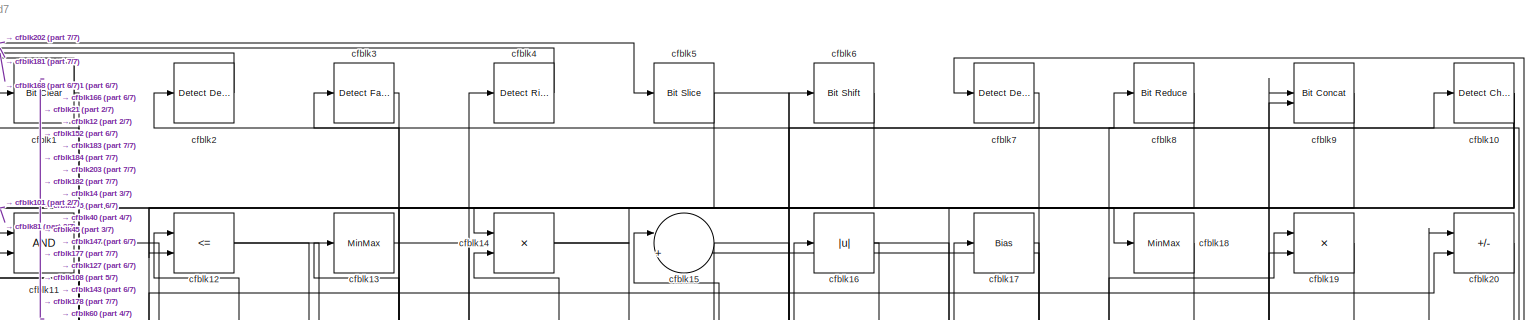
[diagram: root canvas - part 1/7, full width, top band]
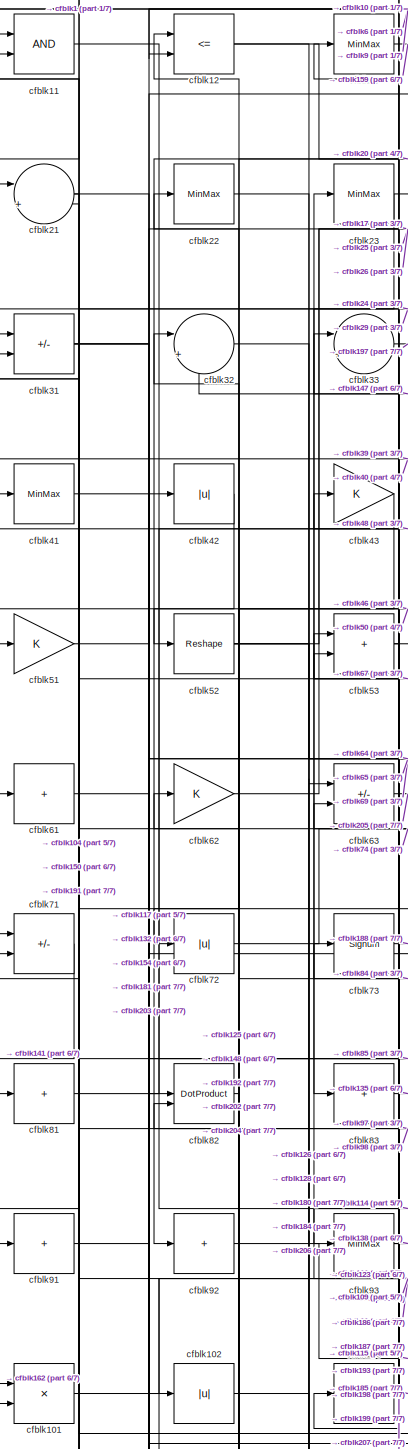
[diagram: root canvas - part 2/7, top left region]
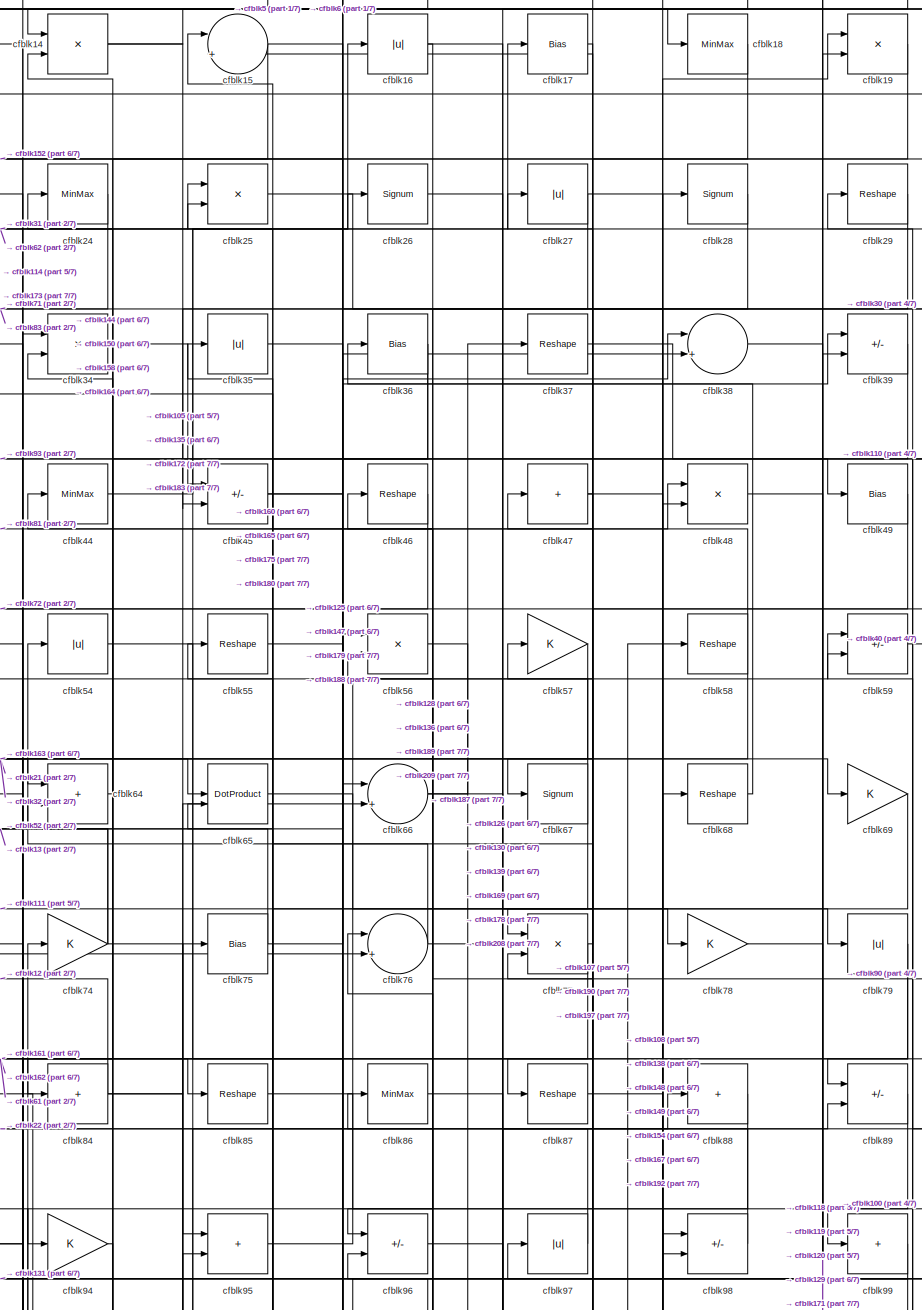
[diagram: root canvas - part 3/7, top center region]
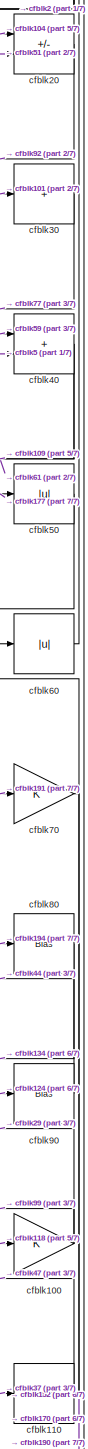
[diagram: root canvas - part 4/7, top right region]
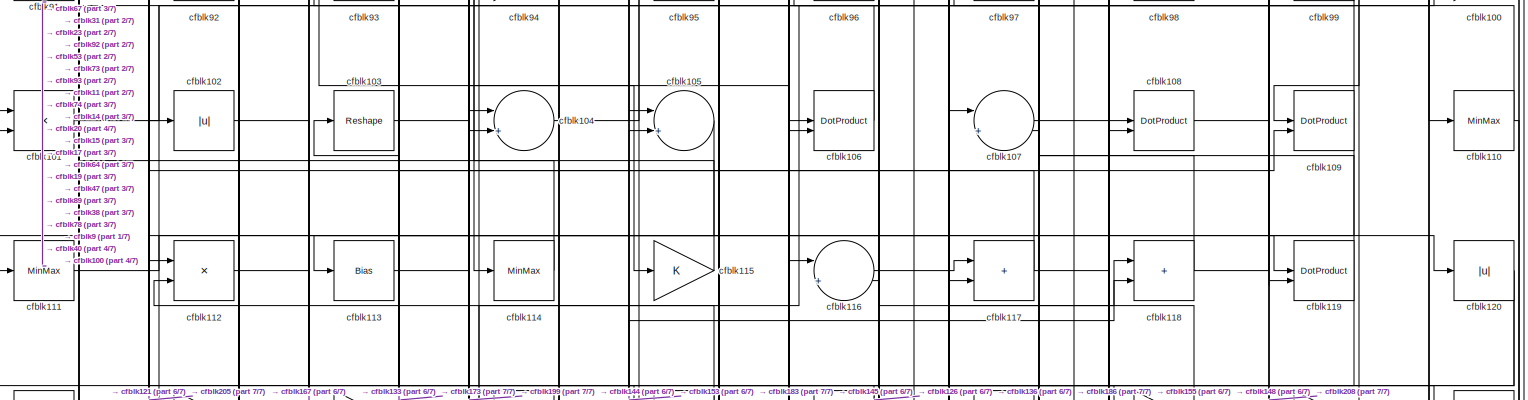
[diagram: root canvas - part 5/7, full width, middle band]
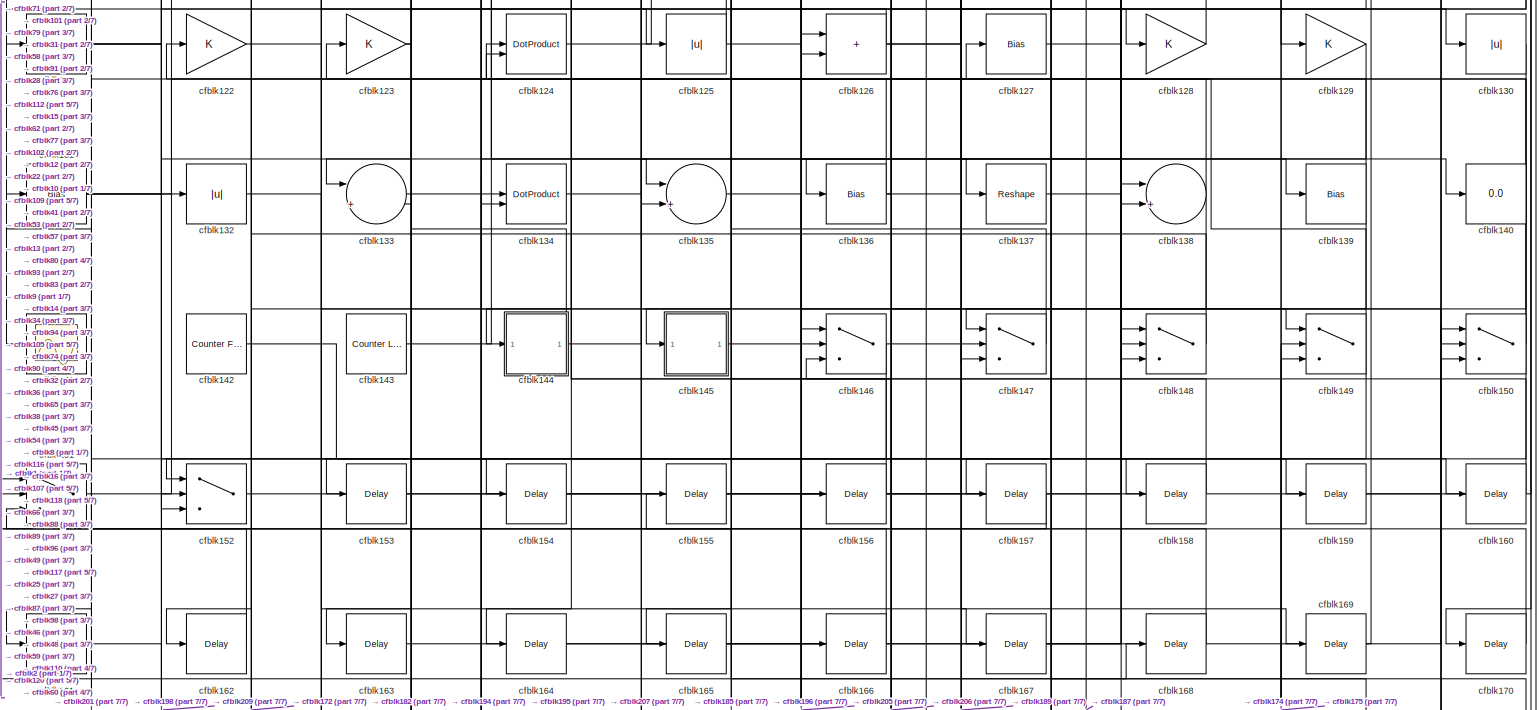
[diagram: root canvas - part 6/7, full width, bottom band]
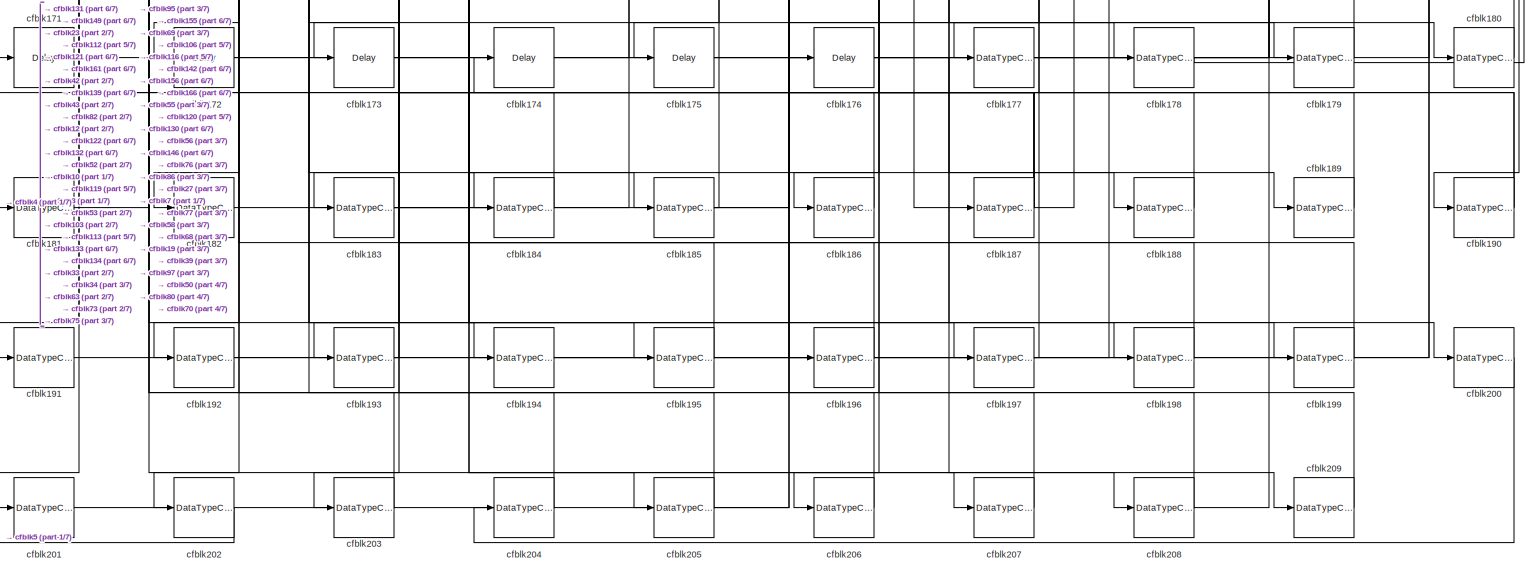
[diagram: root canvas - part 7/7, full width, bottom band]
MODEL slx_ef9e460aded7
KIND model
CONFIG AbsTol = auto
CONFIG EnableMultiTasking = off
CONFIG FixedStep = auto
CONFIG MaxStep = auto
CONFIG MinStep = auto
CONFIG RelTol = 1e-3
CONFIG SampleTimeConstraint = Unconstrained
CONFIG SolverName = VariableStepAuto
CONFIG StartTime = 0.0
CONFIG StopTime = 10.0
BLOCK [Reference] cfblk1  REF=simulink/Logic and Bit
Operations/Bit Clear
  LibrarySourceBlock = hdlsllib/Logic and Bit\nOperations/Bit Clear
  SourceBlock = simulink/Logic and Bit\nOperations/Bit Clear
  SourceType = Bit Clear
BLOCK [Reference] cfblk10  REF=simulink/Logic and Bit
Operations/Detect
Change
  LibrarySourceBlock = hdlsllib/Logic and Bit\nOperations/Detect\nChange
  SourceBlock = simulink/Logic and Bit\nOperations/Detect\nChange
  SourceType = Detect Change
BLOCK [Gain] cfblk100
BLOCK [Product] cfblk101
  Inputs = */
  RndMeth = Zero
  SaturateOnIntegerOverflow = on
BLOCK [Abs] cfblk102
  SaturateOnIntegerOverflow = off
BLOCK [Reshape] cfblk103
BLOCK [Sum] cfblk104
  Inputs = |++
BLOCK [Sum] cfblk105
  Inputs = |++
BLOCK [DotProduct] cfblk106
  OutDataTypeStr = Inherit: Inherit via internal rule
BLOCK [Sum] cfblk107
  Inputs = |++
BLOCK [DotProduct] cfblk108
  OutDataTypeStr = Inherit: Inherit via internal rule
BLOCK [DotProduct] cfblk109
  OutDataTypeStr = Inherit: Inherit via internal rule
BLOCK [Logic] cfblk11
  AllPortsSameDT = off
  OutDataTypeStr = boolean
BLOCK [MinMax] cfblk110
BLOCK [MinMax] cfblk111
BLOCK [Product] cfblk112
  Inputs = */
  RndMeth = Zero
  SaturateOnIntegerOverflow = on
BLOCK [Bias] cfblk113
  Bias = 0.0
  SaturateOnIntegerOverflow = off
BLOCK [MinMax] cfblk114
BLOCK [Gain] cfblk115
BLOCK [Sum] cfblk116
  Inputs = |++
BLOCK [Sum] cfblk117
  IconShape = rectangular
BLOCK [Sum] cfblk118
  IconShape = rectangular
BLOCK [DotProduct] cfblk119
  OutDataTypeStr = Inherit: Inherit via internal rule
BLOCK [RelationalOperator] cfblk12
  InputSameDT = off
  Operator = <=
  OutDataTypeStr = boolean
BLOCK [Abs] cfblk120
  SaturateOnIntegerOverflow = off
BLOCK [Sum] cfblk121
  IconShape = rectangular
  Inputs = +
BLOCK [Gain] cfblk122
BLOCK [Gain] cfblk123
BLOCK [DotProduct] cfblk124
  OutDataTypeStr = Inherit: Inherit via internal rule
BLOCK [Abs] cfblk125
  SaturateOnIntegerOverflow = off
BLOCK [Sum] cfblk126
  IconShape = rectangular
BLOCK [Bias] cfblk127
  Bias = 0.0
  SaturateOnIntegerOverflow = off
BLOCK [Gain] cfblk128
BLOCK [Gain] cfblk129
BLOCK [MinMax] cfblk13
BLOCK [Abs] cfblk130
  SaturateOnIntegerOverflow = off
BLOCK [Bias] cfblk131
  Bias = 0.0
  SaturateOnIntegerOverflow = off
BLOCK [Abs] cfblk132
  SaturateOnIntegerOverflow = off
BLOCK [Sum] cfblk133
  Inputs = |++
BLOCK [DotProduct] cfblk134
  OutDataTypeStr = Inherit: Inherit via internal rule
BLOCK [Sum] cfblk135
  Inputs = |++
BLOCK [Bias] cfblk136
  Bias = 0.0
  SaturateOnIntegerOverflow = off
BLOCK [Reshape] cfblk137
BLOCK [Sum] cfblk138
  Inputs = |++
BLOCK [Bias] cfblk139
  Bias = 0.0
  SaturateOnIntegerOverflow = off
BLOCK [Product] cfblk14
  Inputs = */
  RndMeth = Zero
  SaturateOnIntegerOverflow = on
BLOCK [Display] cfblk140
  Decimation = 1
BLOCK [Scope] cfblk141
  Floating = off
  NumInputPorts = 1
  ScopeSpecificationString = Simulink.scopes.TimeScopeBlockCfg('CurrentConfiguration', extmgr.ConfigurationSet(extmgr.Configuration('Core','General UI',true),extmgr.Configuration('Core','Source UI',true),extmgr.Configuration('Sources','WiredSimulink',true,'DataLoggingVariableName','ScopeData2','DataLoggingSaveFormat','Array','DataLoggingLimitDataPoints',true,'DataLoggingDecimation','1'),extmgr.Configuration('Visuals','Time Do...<+868ch>
BLOCK [Reference] cfblk142  REF=hdlsllib/Sources/Counter
Free-Running
  SourceBlock = hdlsllib/Sources/Counter\nFree-Running
  SourceType = Counter Free-Running
BLOCK [Reference] cfblk143  REF=hdlsllib/Sources/Counter
Limited
  SourceBlock = hdlsllib/Sources/Counter\nLimited
  SourceType = Counter Limited
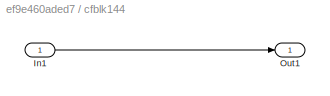
BLOCK [SubSystem] cfblk144
  LibrarySourceBlock = hdlsllib/Ports &\nSubsystems/Subsystem
BLOCK [Inport] cfblk144/In1
BLOCK [Outport] cfblk144/Out1
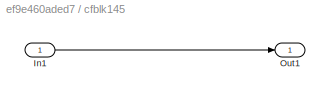
BLOCK [SubSystem] cfblk145
  LibrarySourceBlock = hdlsllib/Ports &\nSubsystems/Subsystem
BLOCK [Inport] cfblk145/In1
BLOCK [Outport] cfblk145/Out1
BLOCK [Switch] cfblk146
  InputSameDT = off
  SaturateOnIntegerOverflow = off
BLOCK [Switch] cfblk147
  InputSameDT = off
  SaturateOnIntegerOverflow = off
BLOCK [Switch] cfblk148
  InputSameDT = off
  SaturateOnIntegerOverflow = off
BLOCK [Switch] cfblk149
  InputSameDT = off
  SaturateOnIntegerOverflow = off
BLOCK [Sum] cfblk15
  Inputs = |++
BLOCK [Switch] cfblk150
  InputSameDT = off
  SaturateOnIntegerOverflow = off
BLOCK [Switch] cfblk151
  InputSameDT = off
  SaturateOnIntegerOverflow = off
BLOCK [Switch] cfblk152
  InputSameDT = off
  SaturateOnIntegerOverflow = off
BLOCK [Delay] cfblk153
  InputPortMap = u0
  SampleTime = 1
BLOCK [Delay] cfblk154
  InputPortMap = u0
  SampleTime = 1
BLOCK [Delay] cfblk155
  InputPortMap = u0
  SampleTime = 1
BLOCK [Delay] cfblk156
  InputPortMap = u0
  SampleTime = 1
BLOCK [Delay] cfblk157
  InputPortMap = u0
  SampleTime = 1
BLOCK [Delay] cfblk158
  InputPortMap = u0
  SampleTime = 1
BLOCK [Delay] cfblk159
  InputPortMap = u0
  SampleTime = 1
BLOCK [Abs] cfblk16
  SaturateOnIntegerOverflow = off
BLOCK [Delay] cfblk160
  InputPortMap = u0
  SampleTime = 1
BLOCK [Delay] cfblk161
  InputPortMap = u0
  SampleTime = 1
BLOCK [Delay] cfblk162
  InputPortMap = u0
  SampleTime = 1
BLOCK [Delay] cfblk163
  InputPortMap = u0
  SampleTime = 1
BLOCK [Delay] cfblk164
  InputPortMap = u0
  SampleTime = 1
BLOCK [Delay] cfblk165
  InputPortMap = u0
  SampleTime = 1
BLOCK [Delay] cfblk166
  InputPortMap = u0
  SampleTime = 1
BLOCK [Delay] cfblk167
  InputPortMap = u0
  SampleTime = 1
BLOCK [Delay] cfblk168
  InputPortMap = u0
  SampleTime = 1
BLOCK [Delay] cfblk169
  InputPortMap = u0
  SampleTime = 1
BLOCK [Bias] cfblk17
  Bias = 0.0
  SaturateOnIntegerOverflow = off
BLOCK [Delay] cfblk170
  InputPortMap = u0
  SampleTime = 1
BLOCK [Delay] cfblk171
  InputPortMap = u0
  SampleTime = 1
BLOCK [Delay] cfblk172
  InputPortMap = u0
  SampleTime = 1
BLOCK [Delay] cfblk173
  InputPortMap = u0
  SampleTime = 1
BLOCK [Delay] cfblk174
  InputPortMap = u0
  SampleTime = 1
BLOCK [Delay] cfblk175
  InputPortMap = u0
  SampleTime = 1
BLOCK [Delay] cfblk176
  InputPortMap = u0
  SampleTime = 1
BLOCK [DataTypeConversion] cfblk177
  OutDataTypeStr = uint8
  RndMeth = Floor
  SaturateOnIntegerOverflow = off
BLOCK [DataTypeConversion] cfblk178
  OutDataTypeStr = uint8
  RndMeth = Floor
  SaturateOnIntegerOverflow = off
BLOCK [DataTypeConversion] cfblk179
  OutDataTypeStr = uint8
  RndMeth = Floor
  SaturateOnIntegerOverflow = off
BLOCK [MinMax] cfblk18
BLOCK [DataTypeConversion] cfblk180
  OutDataTypeStr = uint8
  RndMeth = Floor
  SaturateOnIntegerOverflow = off
BLOCK [DataTypeConversion] cfblk181
  OutDataTypeStr = uint8
  RndMeth = Floor
  SaturateOnIntegerOverflow = off
BLOCK [DataTypeConversion] cfblk182
  OutDataTypeStr = uint8
  RndMeth = Floor
  SaturateOnIntegerOverflow = off
BLOCK [DataTypeConversion] cfblk183
  RndMeth = Floor
  SaturateOnIntegerOverflow = off
BLOCK [DataTypeConversion] cfblk184
  OutDataTypeStr = uint8
  RndMeth = Floor
  SaturateOnIntegerOverflow = off
BLOCK [DataTypeConversion] cfblk185
  RndMeth = Floor
  SaturateOnIntegerOverflow = off
BLOCK [DataTypeConversion] cfblk186
  OutDataTypeStr = uint8
  RndMeth = Floor
  SaturateOnIntegerOverflow = off
BLOCK [DataTypeConversion] cfblk187
  RndMeth = Floor
  SaturateOnIntegerOverflow = off
BLOCK [DataTypeConversion] cfblk188
  OutDataTypeStr = uint8
  RndMeth = Floor
  SaturateOnIntegerOverflow = off
BLOCK [DataTypeConversion] cfblk189
  OutDataTypeStr = uint8
  RndMeth = Floor
  SaturateOnIntegerOverflow = off
BLOCK [Product] cfblk19
  Inputs = */
  RndMeth = Zero
  SaturateOnIntegerOverflow = on
BLOCK [DataTypeConversion] cfblk190
  RndMeth = Floor
  SaturateOnIntegerOverflow = off
BLOCK [DataTypeConversion] cfblk191
  OutDataTypeStr = uint8
  RndMeth = Floor
  SaturateOnIntegerOverflow = off
BLOCK [DataTypeConversion] cfblk192
  OutDataTypeStr = uint8
  RndMeth = Floor
  SaturateOnIntegerOverflow = off
BLOCK [DataTypeConversion] cfblk193
  OutDataTypeStr = uint8
  RndMeth = Floor
  SaturateOnIntegerOverflow = off
BLOCK [DataTypeConversion] cfblk194
  OutDataTypeStr = uint8
  RndMeth = Floor
  SaturateOnIntegerOverflow = off
BLOCK [DataTypeConversion] cfblk195
  OutDataTypeStr = uint8
  RndMeth = Floor
  SaturateOnIntegerOverflow = off
BLOCK [DataTypeConversion] cfblk196
  OutDataTypeStr = uint8
  RndMeth = Floor
  SaturateOnIntegerOverflow = off
BLOCK [DataTypeConversion] cfblk197
  OutDataTypeStr = uint8
  RndMeth = Floor
  SaturateOnIntegerOverflow = off
BLOCK [DataTypeConversion] cfblk198
  OutDataTypeStr = uint8
  RndMeth = Floor
  SaturateOnIntegerOverflow = off
BLOCK [DataTypeConversion] cfblk199
  OutDataTypeStr = uint8
  RndMeth = Floor
  SaturateOnIntegerOverflow = off
BLOCK [Reference] cfblk2  REF=simulink/Logic and Bit
Operations/Detect
Decrease
  LibrarySourceBlock = hdlsllib/Logic and Bit\nOperations/Detect\nDecrease
  SourceBlock = simulink/Logic and Bit\nOperations/Detect\nDecrease
  SourceType = Detect Decrease
BLOCK [Sum] cfblk20
  IconShape = rectangular
  Inputs = +-
BLOCK [DataTypeConversion] cfblk200
  OutDataTypeStr = uint8
  RndMeth = Floor
  SaturateOnIntegerOverflow = off
BLOCK [DataTypeConversion] cfblk201
  OutDataTypeStr = uint8
  RndMeth = Floor
  SaturateOnIntegerOverflow = off
BLOCK [DataTypeConversion] cfblk202
  OutDataTypeStr = uint8
  RndMeth = Floor
  SaturateOnIntegerOverflow = off
BLOCK [DataTypeConversion] cfblk203
  OutDataTypeStr = uint8
  RndMeth = Floor
  SaturateOnIntegerOverflow = off
BLOCK [DataTypeConversion] cfblk204
  OutDataTypeStr = uint8
  RndMeth = Floor
  SaturateOnIntegerOverflow = off
BLOCK [DataTypeConversion] cfblk205
  RndMeth = Floor
  SaturateOnIntegerOverflow = off
BLOCK [DataTypeConversion] cfblk206
  OutDataTypeStr = uint8
  RndMeth = Floor
  SaturateOnIntegerOverflow = off
BLOCK [DataTypeConversion] cfblk207
  OutDataTypeStr = uint8
  RndMeth = Floor
  SaturateOnIntegerOverflow = off
BLOCK [DataTypeConversion] cfblk208
  RndMeth = Floor
  SaturateOnIntegerOverflow = off
BLOCK [DataTypeConversion] cfblk209
  OutDataTypeStr = uint8
  RndMeth = Floor
  SaturateOnIntegerOverflow = off
BLOCK [Sum] cfblk21
  Inputs = |++
BLOCK [MinMax] cfblk22
BLOCK [MinMax] cfblk23
BLOCK [MinMax] cfblk24
BLOCK [Product] cfblk25
  Inputs = */
  RndMeth = Zero
  SaturateOnIntegerOverflow = on
BLOCK [Signum] cfblk26
BLOCK [Abs] cfblk27
  SaturateOnIntegerOverflow = off
BLOCK [Signum] cfblk28
BLOCK [Reshape] cfblk29
BLOCK [Reference] cfblk3  REF=hdlsllib/Logic and Bit
Operations/Detect Fall
Negative
  SourceBlock = hdlsllib/Logic and Bit\nOperations/Detect Fall\nNegative
  SourceType = Detect Fall Negative
BLOCK [Sum] cfblk30
  IconShape = rectangular
  Inputs = +
BLOCK [Sum] cfblk31
  IconShape = rectangular
  Inputs = +-
BLOCK [Sum] cfblk32
  Inputs = |++
BLOCK [Sum] cfblk33
  Inputs = |++
BLOCK [Product] cfblk34
  Inputs = */
  RndMeth = Zero
  SaturateOnIntegerOverflow = on
BLOCK [Abs] cfblk35
  SaturateOnIntegerOverflow = off
BLOCK [Bias] cfblk36
  Bias = 0.0
  SaturateOnIntegerOverflow = off
BLOCK [Reshape] cfblk37
BLOCK [Sum] cfblk38
  Inputs = |++
BLOCK [Sum] cfblk39
  IconShape = rectangular
  Inputs = +-
BLOCK [Reference] cfblk4  REF=hdlsllib/Logic and Bit
Operations/Detect Rise
Nonnegative
  SourceBlock = hdlsllib/Logic and Bit\nOperations/Detect Rise\nNonnegative
  SourceType = Detect Rise Nonnegative
BLOCK [Sum] cfblk40
  IconShape = rectangular
BLOCK [MinMax] cfblk41
BLOCK [Abs] cfblk42
  SaturateOnIntegerOverflow = off
BLOCK [Gain] cfblk43
BLOCK [MinMax] cfblk44
BLOCK [Sum] cfblk45
  IconShape = rectangular
  Inputs = +-
BLOCK [Reshape] cfblk46
BLOCK [Sum] cfblk47
  IconShape = rectangular
  Inputs = +
BLOCK [Product] cfblk48
  Inputs = */
  RndMeth = Zero
  SaturateOnIntegerOverflow = on
BLOCK [Bias] cfblk49
  Bias = 0.0
  SaturateOnIntegerOverflow = off
BLOCK [Reference] cfblk5  REF=hdlsllib/Logic and Bit
Operations/Bit Slice
  SourceBlock = hdlsllib/Logic and Bit\nOperations/Bit Slice
  SourceType = Bit Slice
BLOCK [Abs] cfblk50
  SaturateOnIntegerOverflow = off
BLOCK [Gain] cfblk51
BLOCK [Reshape] cfblk52
BLOCK [Sum] cfblk53
  IconShape = rectangular
BLOCK [Abs] cfblk54
  SaturateOnIntegerOverflow = off
BLOCK [Reshape] cfblk55
BLOCK [Product] cfblk56
  Inputs = */
  RndMeth = Zero
  SaturateOnIntegerOverflow = on
BLOCK [Gain] cfblk57
BLOCK [Reshape] cfblk58
BLOCK [Sum] cfblk59
  IconShape = rectangular
  Inputs = +-
BLOCK [Reference] cfblk6  REF=hdlsllib/Logic and Bit
Operations/Bit Shift
  SourceBlock = hdlsllib/Logic and Bit\nOperations/Bit Shift
  SourceType = Bit Shift
BLOCK [Abs] cfblk60
  SaturateOnIntegerOverflow = off
BLOCK [Sum] cfblk61
  IconShape = rectangular
  Inputs = +
BLOCK [Gain] cfblk62
BLOCK [Sum] cfblk63
  IconShape = rectangular
  Inputs = +-
BLOCK [Sum] cfblk64
  IconShape = rectangular
BLOCK [DotProduct] cfblk65
  OutDataTypeStr = Inherit: Inherit via internal rule
BLOCK [Sum] cfblk66
  Inputs = |++
BLOCK [Signum] cfblk67
BLOCK [Reshape] cfblk68
BLOCK [Gain] cfblk69
BLOCK [Reference] cfblk7  REF=simulink/Logic and Bit
Operations/Detect
Decrease
  LibrarySourceBlock = hdlsllib/Logic and Bit\nOperations/Detect\nDecrease
  SourceBlock = simulink/Logic and Bit\nOperations/Detect\nDecrease
  SourceType = Detect Decrease
BLOCK [Gain] cfblk70
BLOCK [Sum] cfblk71
  IconShape = rectangular
  Inputs = +-
BLOCK [Abs] cfblk72
  SaturateOnIntegerOverflow = off
BLOCK [Signum] cfblk73
BLOCK [Gain] cfblk74
BLOCK [Bias] cfblk75
  Bias = 0.0
  SaturateOnIntegerOverflow = off
BLOCK [Sum] cfblk76
  Inputs = |++
BLOCK [Product] cfblk77
  Inputs = */
  RndMeth = Zero
  SaturateOnIntegerOverflow = on
BLOCK [Gain] cfblk78
BLOCK [Abs] cfblk79
  SaturateOnIntegerOverflow = off
BLOCK [Reference] cfblk8  REF=hdlsllib/Logic and Bit
Operations/Bit Reduce
  SourceBlock = hdlsllib/Logic and Bit\nOperations/Bit Reduce
  SourceType = Bit Reduce
BLOCK [Bias] cfblk80
  Bias = 0.0
  SaturateOnIntegerOverflow = off
BLOCK [Sum] cfblk81
  IconShape = rectangular
  Inputs = +
BLOCK [DotProduct] cfblk82
  OutDataTypeStr = Inherit: Inherit via internal rule
BLOCK [Sum] cfblk83
  IconShape = rectangular
  Inputs = +
BLOCK [Sum] cfblk84
  IconShape = rectangular
  Inputs = +
BLOCK [Reshape] cfblk85
BLOCK [MinMax] cfblk86
BLOCK [Reshape] cfblk87
BLOCK [Sum] cfblk88
  IconShape = rectangular
  Inputs = +
BLOCK [Sum] cfblk89
  IconShape = rectangular
  Inputs = +-
BLOCK [Reference] cfblk9  REF=hdlsllib/Logic and Bit
Operations/Bit Concat
  SourceBlock = hdlsllib/Logic and Bit\nOperations/Bit Concat
  SourceType = Bit Concat
BLOCK [Bias] cfblk90
  Bias = 0.0
  SaturateOnIntegerOverflow = off
BLOCK [Sum] cfblk91
  IconShape = rectangular
  Inputs = +
BLOCK [Sum] cfblk92
  IconShape = rectangular
  Inputs = +
BLOCK [MinMax] cfblk93
BLOCK [Gain] cfblk94
BLOCK [Sum] cfblk95
  IconShape = rectangular
BLOCK [Sum] cfblk96
  IconShape = rectangular
  Inputs = +-
BLOCK [Abs] cfblk97
  SaturateOnIntegerOverflow = off
BLOCK [Sum] cfblk98
  IconShape = rectangular
  Inputs = +-
BLOCK [Sum] cfblk99
  IconShape = rectangular
  Inputs = +
NET cfblk100:1 -> cfblk29:1, cfblk99:1
LINE cfblk101:1 -> cfblk30:1
LINE cfblk102:1 -> cfblk150:2
LINE cfblk103:1 -> cfblk185:1
LINE cfblk104:1 -> cfblk20:1
LINE cfblk105:1 -> cfblk113:1
LINE cfblk106:1 -> cfblk23:1
LINE cfblk107:1 -> cfblk19:1
LINE cfblk108:1 -> cfblk9:2
NET cfblk109:1 -> cfblk11:2, cfblk133:1
NET cfblk10:1 -> cfblk12:2, cfblk152:2, cfblk203:1
NET cfblk110:1 -> cfblk170:1, cfblk47:1
LINE cfblk111:1 -> cfblk119:1
LINE cfblk112:1 -> cfblk167:1
LINE cfblk113:1 -> cfblk199:1
LINE cfblk114:1 -> cfblk74:1
LINE cfblk115:1 -> cfblk11:1
LINE cfblk116:1 -> cfblk117:1
NET cfblk117:1 -> cfblk148:3, cfblk73:1
NET cfblk118:1 -> cfblk100:1, cfblk64:2
NET cfblk119:1 -> cfblk15:2, cfblk173:1
LINE cfblk11:1 -> cfblk114:1
NET cfblk120:1 -> cfblk145:1, cfblk186:1
NET cfblk121:1 -> cfblk109:2, cfblk125:1, cfblk209:1
LINE cfblk122:1 -> cfblk194:1
NET cfblk123:1 -> cfblk133:2, cfblk53:1
LINE cfblk124:1 -> cfblk90:1
NET cfblk125:1 -> cfblk32:1, cfblk38:1
NET cfblk126:1 -> cfblk118:2, cfblk121:1, cfblk89:2
LINE cfblk127:1 -> cfblk10:1
LINE cfblk128:1 -> cfblk46:1
LINE cfblk129:1 -> cfblk146:2
NET cfblk12:1 -> cfblk126:1, cfblk180:1
LINE cfblk130:1 -> cfblk206:1
NET cfblk131:1 -> cfblk140:1, cfblk28:1, cfblk76:2
LINE cfblk132:1 -> cfblk195:1
LINE cfblk133:1 -> cfblk207:1
LINE cfblk134:1 -> cfblk137:1
LINE cfblk135:1 -> cfblk158:1
NET cfblk136:1 -> cfblk112:2, cfblk116:2, cfblk88:1
LINE cfblk137:1 -> cfblk160:1
NET cfblk138:1 -> cfblk123:1, cfblk157:1
NET cfblk139:1 -> cfblk172:1, cfblk65:2
LINE cfblk13:1 -> cfblk159:1
LINE cfblk142:1 -> cfblk196:1
LINE cfblk143:1 -> cfblk9:1
LINE cfblk144/In1:1 -> cfblk144/Out1:1
NET cfblk144:1 -> cfblk118:1, cfblk41:1
LINE cfblk145/In1:1 -> cfblk145/Out1:1
LINE cfblk145:1 -> cfblk8:1
NET cfblk146:1 -> cfblk182:1, cfblk189:1
LINE cfblk147:1 -> cfblk32:2
LINE cfblk148:1 -> cfblk62:1
NET cfblk149:1 -> cfblk124:1, cfblk201:1
NET cfblk14:1 -> cfblk105:1, cfblk18:1
NET cfblk150:1 -> cfblk153:1, cfblk34:2, cfblk71:1
LINE cfblk151:1 -> cfblk127:1
LINE cfblk152:1 -> cfblk60:1
LINE cfblk153:1 -> cfblk105:2
LINE cfblk154:1 -> cfblk48:2
LINE cfblk155:1 -> cfblk107:1
LINE cfblk156:1 -> cfblk124:2
LINE cfblk157:1 -> cfblk151:3
LINE cfblk158:1 -> cfblk14:2
LINE cfblk159:1 -> cfblk150:1
NET cfblk15:1 -> cfblk152:1, cfblk49:1
LINE cfblk160:1 -> cfblk25:2
LINE cfblk161:1 -> cfblk198:1
LINE cfblk162:1 -> cfblk101:1
LINE cfblk163:1 -> cfblk146:1
LINE cfblk164:1 -> cfblk148:1
LINE cfblk165:1 -> cfblk150:3
LINE cfblk166:1 -> cfblk1:1
LINE cfblk167:1 -> cfblk98:1
LINE cfblk168:1 -> cfblk151:2
LINE cfblk169:1 -> cfblk59:2
NET cfblk16:1 -> cfblk130:1, cfblk136:1
LINE cfblk170:1 -> cfblk146:3
LINE cfblk171:1 -> cfblk19:2
LINE cfblk172:1 -> cfblk95:2
LINE cfblk173:1 -> cfblk34:1
LINE cfblk174:1 -> cfblk149:2
LINE cfblk175:1 -> cfblk149:3
LINE cfblk176:1 -> cfblk200:1
LINE cfblk177:1 -> cfblk50:1
LINE cfblk178:1 -> cfblk7:1
LINE cfblk179:1 -> cfblk97:1
LINE cfblk17:1 -> cfblk107:2
LINE cfblk180:1 -> cfblk55:1
LINE cfblk181:1 -> cfblk42:1
LINE cfblk182:1 -> cfblk4:1
NET cfblk183:1 -> cfblk116:1, cfblk75:1
LINE cfblk184:1 -> cfblk3:1
NET cfblk185:1 -> cfblk155:1, cfblk156:1
LINE cfblk186:1 -> cfblk103:1
NET cfblk187:1 -> cfblk131:1, cfblk171:1, cfblk53:2, cfblk58:1, cfblk76:1
LINE cfblk188:1 -> cfblk56:1
LINE cfblk189:1 -> cfblk56:2
LINE cfblk18:1 -> cfblk67:1
NET cfblk190:1 -> cfblk174:1, cfblk77:2
LINE cfblk191:1 -> cfblk70:1
LINE cfblk192:1 -> cfblk68:1
LINE cfblk193:1 -> cfblk43:1
LINE cfblk194:1 -> cfblk80:1
LINE cfblk195:1 -> cfblk122:1
LINE cfblk196:1 -> cfblk134:1
LINE cfblk197:1 -> cfblk27:1
LINE cfblk198:1 -> cfblk33:1
LINE cfblk199:1 -> cfblk33:2
LINE cfblk19:1 -> cfblk84:1
NET cfblk1:1 -> cfblk151:1, cfblk21:1
LINE cfblk200:1 -> cfblk204:1
LINE cfblk201:1 -> cfblk176:1
LINE cfblk202:1 -> cfblk5:1
LINE cfblk203:1 -> cfblk82:1
LINE cfblk204:1 -> cfblk82:2
NET cfblk205:1 -> cfblk112:1, cfblk166:1
LINE cfblk206:1 -> cfblk63:1
LINE cfblk207:1 -> cfblk63:2
NET cfblk208:1 -> cfblk106:1, cfblk39:2
LINE cfblk209:1 -> cfblk86:1
LINE cfblk20:1 -> cfblk92:1
NET cfblk21:1 -> cfblk65:1, cfblk91:1
LINE cfblk22:1 -> cfblk128:1
NET cfblk23:1 -> cfblk104:2, cfblk191:1
LINE cfblk24:1 -> cfblk71:2
LINE cfblk25:1 -> cfblk138:1
LINE cfblk26:1 -> cfblk78:1
NET cfblk27:1 -> cfblk149:1, cfblk45:2
LINE cfblk28:1 -> cfblk96:1
LINE cfblk29:1 -> cfblk83:1
LINE cfblk2:1 -> cfblk168:1
LINE cfblk30:1 -> cfblk77:1
NET cfblk31:1 -> cfblk117:2, cfblk154:1, cfblk26:1
LINE cfblk32:1 -> cfblk64:1
LINE cfblk33:1 -> cfblk197:1
LINE cfblk34:1 -> cfblk45:1
LINE cfblk35:1 -> cfblk66:1
NET cfblk36:1 -> cfblk164:1, cfblk165:1
LINE cfblk37:1 -> cfblk110:1
LINE cfblk38:1 -> cfblk119:2
LINE cfblk39:1 -> cfblk93:1
LINE cfblk3:1 -> cfblk183:1
NET cfblk40:1 -> cfblk109:1, cfblk61:1
LINE cfblk41:1 -> cfblk102:1
LINE cfblk42:1 -> cfblk52:1
LINE cfblk43:1 -> cfblk192:1
LINE cfblk44:1 -> cfblk16:1
NET cfblk45:1 -> cfblk147:3, cfblk6:1
LINE cfblk46:1 -> cfblk72:1
NET cfblk47:1 -> cfblk108:1, cfblk87:1
LINE cfblk48:1 -> cfblk129:1
LINE cfblk49:1 -> cfblk147:1
LINE cfblk4:1 -> cfblk181:1
LINE cfblk50:1 -> cfblk51:1
LINE cfblk51:1 -> cfblk20:2
NET cfblk52:1 -> cfblk17:1, cfblk184:1, cfblk69:1
NET cfblk53:1 -> cfblk104:1, cfblk193:1
LINE cfblk54:1 -> cfblk126:2
LINE cfblk55:1 -> cfblk179:1
LINE cfblk56:1 -> cfblk187:1
LINE cfblk57:1 -> cfblk163:1
NET cfblk58:1 -> cfblk152:3, cfblk15:1
LINE cfblk59:1 -> cfblk40:1
NET cfblk5:1 -> cfblk14:1, cfblk40:2
LINE cfblk60:1 -> cfblk2:1
LINE cfblk61:1 -> cfblk85:1
LINE cfblk62:1 -> cfblk25:1
LINE cfblk63:1 -> cfblk205:1
LINE cfblk64:1 -> cfblk24:1
LINE cfblk65:1 -> cfblk79:1
NET cfblk66:1 -> cfblk169:1, cfblk37:1
NET cfblk67:1 -> cfblk111:1, cfblk31:1
LINE cfblk68:1 -> cfblk36:1
LINE cfblk69:1 -> cfblk175:1
LINE cfblk6:1 -> cfblk81:1
LINE cfblk70:1 -> cfblk190:1
LINE cfblk71:1 -> cfblk141:1
LINE cfblk72:1 -> cfblk39:1
LINE cfblk73:1 -> cfblk188:1
NET cfblk74:1 -> cfblk135:2, cfblk13:1, cfblk21:2
NET cfblk75:1 -> cfblk38:2, cfblk54:1
NET cfblk76:1 -> cfblk178:1, cfblk35:1
NET cfblk77:1 -> cfblk162:1, cfblk57:1
LINE cfblk78:1 -> cfblk120:1
NET cfblk79:1 -> cfblk161:1, cfblk89:1
LINE cfblk7:1 -> cfblk177:1
LINE cfblk80:1 -> cfblk134:2
LINE cfblk81:1 -> cfblk48:1
LINE cfblk82:1 -> cfblk202:1
LINE cfblk83:1 -> cfblk135:1
NET cfblk84:1 -> cfblk12:1, cfblk66:2, cfblk95:1
LINE cfblk85:1 -> cfblk98:2
LINE cfblk86:1 -> cfblk208:1
LINE cfblk87:1 -> cfblk148:2
LINE cfblk88:1 -> cfblk94:1
LINE cfblk89:1 -> cfblk108:2
LINE cfblk8:1 -> cfblk147:2
LINE cfblk90:1 -> cfblk44:1
LINE cfblk91:1 -> cfblk132:1
LINE cfblk92:1 -> cfblk115:1
NET cfblk93:1 -> cfblk106:2, cfblk138:2
LINE cfblk94:1 -> cfblk144:1
LINE cfblk95:1 -> cfblk59:1
LINE cfblk96:1 -> cfblk139:1
LINE cfblk97:1 -> cfblk22:1
LINE cfblk98:1 -> cfblk31:2
LINE cfblk99:1 -> cfblk96:2
LINE cfblk9:1 -> cfblk101:2
note: NET lines group one-source signal fan-out (src -> all destinations, sorted); 1:1 wires keep LINE
